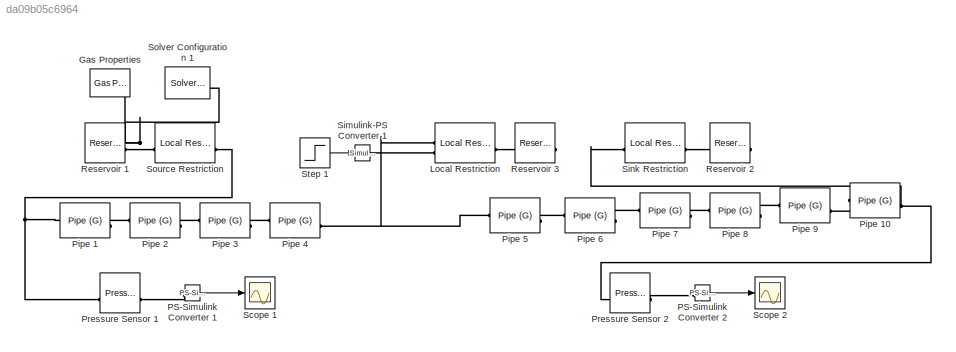
MODEL slx_da09b05c6964
KIND model
CONFIG AbsTol = auto
CONFIG EnableMultiTasking = off
CONFIG FixedStep = auto
CONFIG MaxStep = auto
CONFIG MinStep = auto
CONFIG RelTol = 1e-3
CONFIG SampleTimeConstraint = Unconstrained
CONFIG SolverName = VariableStepAuto
CONFIG StartTime = 0.0
CONFIG StopTime = 150.0
BLOCK [Reference] Gas Properties  REF=fl_lib/Gas/Utilities/Gas Properties (G)
  NameLocation = top
  SourceBlock = fl_lib/Gas/Utilities/Gas Properties (G)
  SourceType = Gas Properties (G)
BLOCK [Reference] Local Restriction  REF=fl_lib/Gas/Elements/Local Restriction
(G)
  SourceBlock = fl_lib/Gas/Elements/Local Restriction\n(G)
  SourceType = Local Restriction\n(G)
BLOCK [Reference] PS-Simulink Converter 1  REF=nesl_utility/PS-Simulink
Converter
  SourceBlock = nesl_utility/PS-Simulink\nConverter
  SourceType = PS-Simulink\nConverter
BLOCK [Reference] PS-Simulink Converter 2  REF=nesl_utility/PS-Simulink
Converter
  SourceBlock = nesl_utility/PS-Simulink\nConverter
  SourceType = PS-Simulink\nConverter
BLOCK [Reference] Pipe 1  REF=fl_lib/Gas/Elements/Pipe (G)
  SourceBlock = fl_lib/Gas/Elements/Pipe (G)
  SourceType = Pipe (G)
BLOCK [Reference] Pipe 10  REF=fl_lib/Gas/Elements/Pipe (G)
  SourceBlock = fl_lib/Gas/Elements/Pipe (G)
  SourceType = Pipe (G)
BLOCK [Reference] Pipe 2  REF=fl_lib/Gas/Elements/Pipe (G)
  SourceBlock = fl_lib/Gas/Elements/Pipe (G)
  SourceType = Pipe (G)
BLOCK [Reference] Pipe 3  REF=fl_lib/Gas/Elements/Pipe (G)
  SourceBlock = fl_lib/Gas/Elements/Pipe (G)
  SourceType = Pipe (G)
BLOCK [Reference] Pipe 4  REF=fl_lib/Gas/Elements/Pipe (G)
  SourceBlock = fl_lib/Gas/Elements/Pipe (G)
  SourceType = Pipe (G)
BLOCK [Reference] Pipe 5  REF=fl_lib/Gas/Elements/Pipe (G)
  SourceBlock = fl_lib/Gas/Elements/Pipe (G)
  SourceType = Pipe (G)
BLOCK [Reference] Pipe 6  REF=fl_lib/Gas/Elements/Pipe (G)
  SourceBlock = fl_lib/Gas/Elements/Pipe (G)
  SourceType = Pipe (G)
BLOCK [Reference] Pipe 7  REF=fl_lib/Gas/Elements/Pipe (G)
  SourceBlock = fl_lib/Gas/Elements/Pipe (G)
  SourceType = Pipe (G)
BLOCK [Reference] Pipe 8  REF=fl_lib/Gas/Elements/Pipe (G)
  SourceBlock = fl_lib/Gas/Elements/Pipe (G)
  SourceType = Pipe (G)
BLOCK [Reference] Pipe 9  REF=fl_lib/Gas/Elements/Pipe (G)
  SourceBlock = fl_lib/Gas/Elements/Pipe (G)
  SourceType = Pipe (G)
BLOCK [Reference] Pressure Sensor 1  REF=fl_lib/Gas/Sensors/Pressure &
Temperature Sensor
(G)
  SourceBlock = fl_lib/Gas/Sensors/Pressure &\nTemperature Sensor\n(G)
  SourceType = Pressure &\nTemperature Sensor\n(G)
BLOCK [Reference] Pressure Sensor 2  REF=fl_lib/Gas/Sensors/Pressure &
Temperature Sensor
(G)
  SourceBlock = fl_lib/Gas/Sensors/Pressure &\nTemperature Sensor\n(G)
  SourceType = Pressure &\nTemperature Sensor\n(G)
BLOCK [Reference] Reservoir 1  REF=fl_lib/Gas/Elements/Reservoir (G)
  SourceBlock = fl_lib/Gas/Elements/Reservoir (G)
  SourceType = Reservoir (G)
BLOCK [Reference] Reservoir 2  REF=fl_lib/Gas/Elements/Reservoir (G)
  SourceBlock = fl_lib/Gas/Elements/Reservoir (G)
  SourceType = Reservoir (G)
BLOCK [Reference] Reservoir 3  REF=fl_lib/Gas/Elements/Reservoir (G)
  SourceBlock = fl_lib/Gas/Elements/Reservoir (G)
  SourceType = Reservoir (G)
BLOCK [Scope] Scope 1
  ActiveDisplayYMaximum = 4.9979557834820358
  ActiveDisplayYMinimum = 4.9955154111943
  Floating = off
  GraphicalSettings = {"AxesScalingProperties":{"AlignXAxis":"Center","AlignYAxis":"Center","AutoScaleXAxisLimits":false,"AxesScaling":"Manual","AxesScalingNumUpdates":10,"ExpandOnly":true,"ScaleAxesLimitsAtStop":false,"XAxisDataRange":100,"YAxisDataRange":80},"DisplayProperties":{"ColorOrder":["auto","auto","auto","auto","auto","auto","auto","auto","auto","auto","auto","auto","auto","auto","auto","auto","auto","auto",...<+1839ch>
  MultipleDisplayCache = [{"MaxYLimMag":4.9979557834820358,"MaxYLimReal":4.9979557834820358,"MinYLimMag":4.9955154111943,"MinYLimReal":4.9955154111943,"PlotAsMagnitudePhase":false,"ShowGrid":true,"ShowLegend":false,"Title":"%<SignalLabel>","YLabel":""}]
  NumInputPorts = 1
  ScopeFrameLocation = window
  WasSavedAsWebScope = on
  WindowPosition = [1360.000000,576.000000,560.000000,420.000000,]
BLOCK [Scope] Scope 2
  ActiveDisplayYMaximum = 4.5027874140359385
  ActiveDisplayYMinimum = 4.4981928652201217
  DataLoggingVariableName = ScopeData1
  Floating = off
  GraphicalSettings = {"AxesScalingProperties":{"AlignXAxis":"Center","AlignYAxis":"Center","AutoScaleXAxisLimits":false,"AxesScaling":"Manual","AxesScalingNumUpdates":10,"ExpandOnly":true,"ScaleAxesLimitsAtStop":false,"XAxisDataRange":100,"YAxisDataRange":80},"DisplayProperties":{"ColorOrder":["auto","auto","auto","auto","auto","auto","auto","auto","auto","auto","auto","auto","auto","auto","auto","auto","auto","auto",...<+1956ch>
  MultipleDisplayCache = [{"MaxYLimMag":4.5027874140359385,"MaxYLimReal":4.5027874140359385,"MinYLimMag":4.4981928652201217,"MinYLimReal":4.4981928652201217,"PlotAsMagnitudePhase":false,"ShowGrid":true,"ShowLegend":false,"Title":"%<SignalLabel>","YLabel":""}]
  NumInputPorts = 1
  ScopeFrameLocation = window
  WasSavedAsWebScope = on
  WindowPosition = [1360.000000,123.000000,560.000000,420.000000,]
BLOCK [Reference] Simulink-PS Converter 1  REF=nesl_utility/Simulink-PS
Converter
  NameLocation = top
  SourceBlock = nesl_utility/Simulink-PS\nConverter
  SourceType = Simulink-PS\nConverter
BLOCK [Reference] Sink Restriction  REF=fl_lib/Gas/Elements/Local Restriction
(G)
  SourceBlock = fl_lib/Gas/Elements/Local Restriction\n(G)
  SourceType = Local Restriction\n(G)
BLOCK [Reference] Solver Configuration 1  REF=nesl_utility/Solver
Configuration
  NameLocation = top
  SourceBlock = nesl_utility/Solver\nConfiguration
  SourceType = Solver\nConfiguration
BLOCK [Reference] Source Restriction  REF=fl_lib/Gas/Elements/Local Restriction
(G)
  SourceBlock = fl_lib/Gas/Elements/Local Restriction\n(G)
  SourceType = Local Restriction\n(G)
BLOCK [Step] Step 1
  After = 0.02
  SampleTime = 0
  Time = 10
LINE PS-Simulink Converter 1:1 -> Scope 1:1
LINE PS-Simulink Converter 2:1 -> Scope 2:1
LINE Step 1:1 -> Simulink-PS Converter 1:1
PNET net1: Gas Properties:RConn1 -- Reservoir 1:LConn1 -- Solver Configuration 1:RConn1 -- Source Restriction:LConn1
PNET net2: Local Restriction:LConn1 -- Pipe 4:RConn1 -- Pipe 5:LConn1
PLINE Local Restriction:LConn2 -- Simulink-PS Converter 1:RConn1
PLINE Local Restriction:RConn1 -- Reservoir 3:LConn1
PLINE PS-Simulink Converter 1:LConn1 -- Pressure Sensor 1:RConn1
PLINE PS-Simulink Converter 2:LConn1 -- Pressure Sensor 2:RConn1
PLINE Pipe 10:LConn1 -- Pipe 9:RConn1
PNET net3: Pipe 10:RConn1 -- Pressure Sensor 2:LConn1 -- Sink Restriction:LConn1
PNET net4: Pipe 1:LConn1 -- Pressure Sensor 1:LConn1 -- Source Restriction:RConn1
PLINE Pipe 1:RConn1 -- Pipe 2:LConn1
PLINE Pipe 2:RConn1 -- Pipe 3:LConn1
PLINE Pipe 3:RConn1 -- Pipe 4:LConn1
PLINE Pipe 5:RConn1 -- Pipe 6:LConn1
PLINE Pipe 6:RConn1 -- Pipe 7:LConn1
PLINE Pipe 7:RConn1 -- Pipe 8:LConn1
PLINE Pipe 8:RConn1 -- Pipe 9:LConn1
PLINE Reservoir 2:LConn1 -- Sink Restriction:RConn1
note: PNET lines group multi-terminal physical nets as a canonical sorted terminal list (undirected conserving connections); 2-terminal nets keep the pairwise PLINE form
